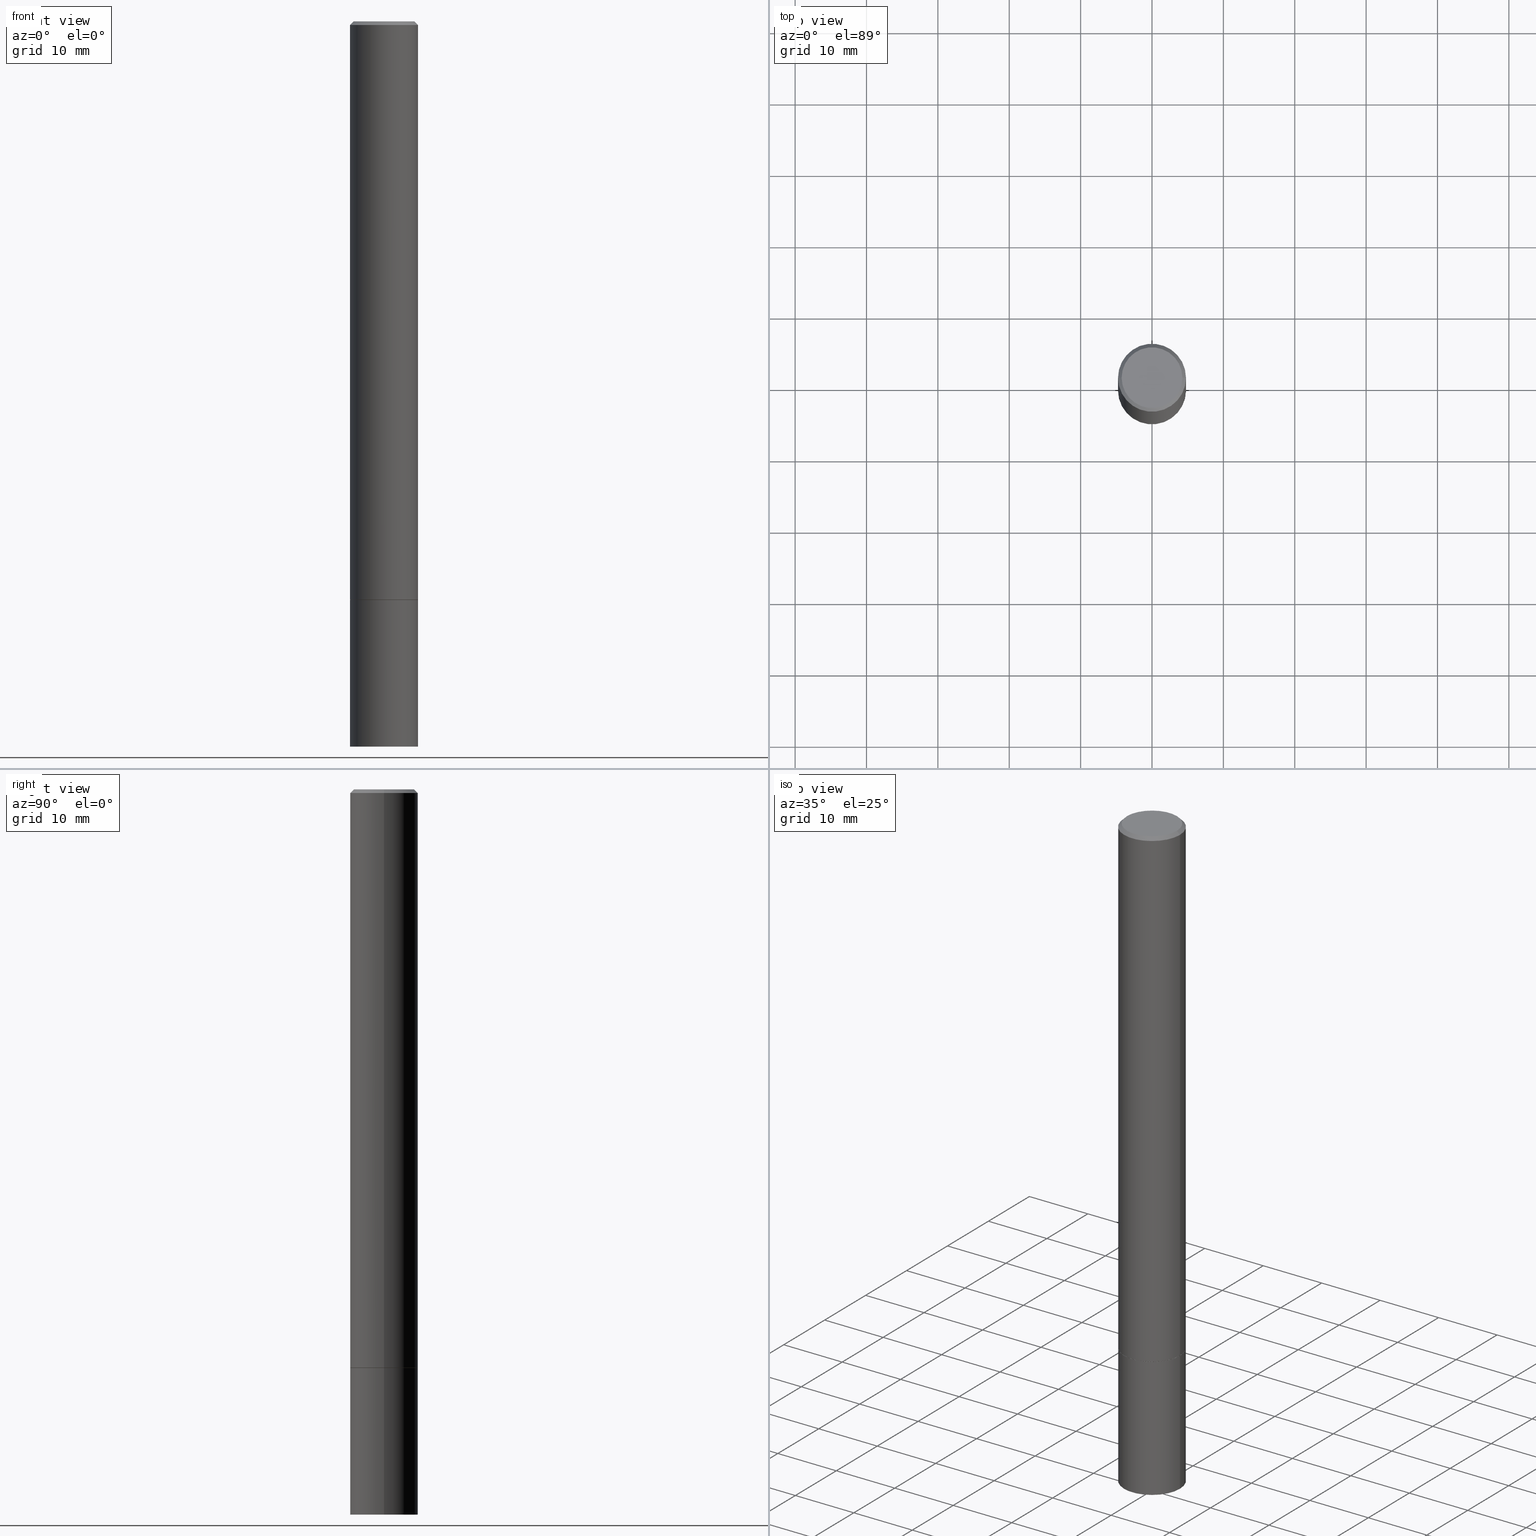
[diagram: canonical four-view strip — front | top / right | iso, engineering-drawing reading convention]
A machine part, canonical four-view strip (front | top / right | iso — engineering-drawing reading convention). The complete STEP part file that produces these views, byte-faithful:
ISO-10303-21;
HEADER;
FILE_DESCRIPTION (( 'STEP AP203' ),
    '1' );
FILE_NAME ('36142.STEP',
    '2024-02-27T19:13:35',
    ( '' ),
    ( '' ),
    'SwSTEP 2.0',
    'SolidWorks 2023',
    '' );
FILE_SCHEMA (( 'CONFIG_CONTROL_DESIGN' ));
ENDSEC;

DATA;
#1 = ORIENTED_EDGE ( 'NONE', *, *, #68, .T. ) ;
#2 = DIRECTION ( 'NONE',  ( -2.445468806185136597E-29, 3.491481338843145583E-15, 1.000000000000000000 ) ) ;
#3 = ADVANCED_FACE ( 'NONE', ( #161 ), #196, .T. ) ;
#4 = VERTEX_POINT ( 'NONE', #55 ) ;
#5 = COORDINATED_UNIVERSAL_TIME_OFFSET ( 5, 0, .BEHIND. ) ;
#6 = APPROVAL ( #12, 'UNSPECIFIED' ) ;
#7 = CARTESIAN_POINT ( 'NONE',  ( 7.801045491730584668E-29, -1.113782547090963453E-14, -3.189999999999999503 ) ) ;
#8 = EDGE_CURVE ( 'NONE', #230, #284, #127, .T. ) ;
#9 = APPROVAL_STATUS ( 'not_yet_approved' ) ;
#10 = DIRECTION ( 'NONE',  ( -2.445468806185136597E-29, 3.491481338843145583E-15, 1.000000000000000000 ) ) ;
#11 = ORIENTED_EDGE ( 'NONE', *, *, #357, .F. ) ;
#12 = APPROVAL_STATUS ( 'not_yet_approved' ) ;
#13 = APPLICATION_CONTEXT ( 'configuration controlled 3d designs of mechanical parts and assemblies' ) ;
#14 = CARTESIAN_POINT ( 'NONE',  ( 7.801045491730584668E-29, -1.113782547090963453E-14, -3.189999999999999503 ) ) ;
#15 = CIRCLE ( 'NONE', #332, 0.1874999999999996669 ) ;
#16 = DIRECTION ( 'NONE',  ( -1.000000000000000000, 6.982962677686267499E-15, 0.000000000000000000 ) ) ;
#17 = FACE_OUTER_BOUND ( 'NONE', #128, .T. ) ;
#18 = CC_DESIGN_DATE_AND_TIME_ASSIGNMENT ( #65, #259, ( #215 ) ) ;
#19 = CARTESIAN_POINT ( 'NONE',  ( 0.000000000000000000, 0.000000000000000000, 0.000000000000000000 ) ) ;
#20 = AXIS2_PLACEMENT_3D ( 'NONE', #300, #88, #47 ) ;
#21 = PRODUCT_DEFINITION_FORMATION_WITH_SPECIFIED_SOURCE ( 'ANY', '', #277, .NOT_KNOWN. ) ;
#22 = ADVANCED_FACE ( 'NONE', ( #82 ), #193, .F. ) ;
#23 = ORIENTED_EDGE ( 'NONE', *, *, #164, .T. ) ;
#24 = AXIS2_PLACEMENT_3D ( 'NONE', #114, #89, #206 ) ;
#25 = CARTESIAN_POINT ( 'NONE',  ( 7.798600022924400186E-29, -1.113433398957079152E-14, -3.188999999999999613 ) ) ;
#26 = ADVANCED_FACE ( 'NONE', ( #154 ), #274, .F. ) ;
#27 = CARTESIAN_POINT ( 'NONE',  ( 0.1875000000000000278, -1.244713097297580796E-14, -3.189999999999999503 ) ) ;
#28 = DIRECTION ( 'NONE',  ( 0.7071067811866320607, -2.468850131083142557E-15, 0.7071067811864629737 ) ) ;
#29 = AXIS2_PLACEMENT_3D ( 'NONE', #25, #122, #273 ) ;
#30 = ORIENTED_EDGE ( 'NONE', *, *, #224, .T. ) ;
#31 = VERTEX_POINT ( 'NONE', #278 ) ;
#32 = ORIENTED_EDGE ( 'NONE', *, *, #264, .F. ) ;
#33 = APPROVAL_DATE_TIME ( #58, #267 ) ;
#34 = CARTESIAN_POINT ( 'NONE',  ( 0.000000000000000000, 0.000000000000000000, 0.000000000000000000 ) ) ;
#35 = DIRECTION ( 'NONE',  ( -2.445468806185136877E-29, 3.491481338843145188E-15, 1.000000000000000000 ) ) ;
#36 = AXIS2_PLACEMENT_3D ( 'NONE', #123, #302, #305 ) ;
#37 = SECURITY_CLASSIFICATION_LEVEL ( 'unclassified' ) ;
#38 = ORIENTED_EDGE ( 'NONE', *, *, #287, .T. ) ;
#39 = COORDINATED_UNIVERSAL_TIME_OFFSET ( 5, 0, .BEHIND. ) ;
#40 = CARTESIAN_POINT ( 'NONE',  ( 0.1875000000000000278, -1.527523085743875734E-14, -4.000000000000000000 ) ) ;
#41 = CARTESIAN_POINT ( 'NONE',  ( 0.000000000000000000, 0.000000000000000000, 0.000000000000000000 ) ) ;
#42 = CLOSED_SHELL ( 'NONE', ( #117, #317, #106, #293, #229, #74, #26, #359 ) ) ;
#43 = DIRECTION ( 'NONE',  ( 1.000000000000000000, -6.982962677686269077E-15, 0.000000000000000000 ) ) ;
#44 = DIRECTION ( 'NONE',  ( -2.445468806185136597E-29, 3.491481338843145583E-15, 1.000000000000000000 ) ) ;
#45 = VECTOR ( 'NONE', #324, 39.37007874015748143 ) ;
#46 = VERTEX_POINT ( 'NONE', #86 ) ;
#47 = DIRECTION ( 'NONE',  ( 1.000000000000000000, -6.982962677686266711E-15, 4.876176775795935793E-29 ) ) ;
#48 = ORIENTED_EDGE ( 'NONE', *, *, #164, .F. ) ;
#49 = EDGE_CURVE ( 'NONE', #83, #46, #361, .T. ) ;
#50 = VECTOR ( 'NONE', #66, 39.37007874015748143 ) ;
#51 = LOCAL_TIME ( 14, 13, 35.00000000000000000, #5 ) ;
#52 = LINE ( 'NONE', #103, #173 ) ;
#53 = CARTESIAN_POINT ( 'NONE',  ( 1.169646248512447426E-15, 0.1674999999999996769, -5.848231242562257836E-16 ) ) ;
#54 = EDGE_CURVE ( 'NONE', #230, #249, #115, .T. ) ;
#55 = CARTESIAN_POINT ( 'NONE',  ( -0.1875000000000000278, -1.121960778359091979E-14, -3.189999999999999503 ) ) ;
#56 = DIRECTION ( 'NONE',  ( 1.000000000000000000, -6.982962677686265922E-15, 4.876176775795935793E-29 ) ) ;
#57 = ORIENTED_EDGE ( 'NONE', *, *, #357, .T. ) ;
#58 = DATE_AND_TIME ( #135, #342 ) ;
#59 = ORIENTED_EDGE ( 'NONE', *, *, #185, .F. ) ;
#60 = CALENDAR_DATE ( 2024, 27, 2 ) ;
#61 = EDGE_LOOP ( 'NONE', ( #328, #38, #162, #337 ) ) ;
#62 = CALENDAR_DATE ( 2024, 27, 2 ) ;
#63 = VECTOR ( 'NONE', #35, 39.37007874015748143 ) ;
#64 = ORIENTED_EDGE ( 'NONE', *, *, #175, .T. ) ;
#65 = DATE_AND_TIME ( #60, #253 ) ;
#66 = DIRECTION ( 'NONE',  ( -0.7071067811865466846, 2.468850131082247989E-15, -0.7071067811865483499 ) ) ;
#67 = CARTESIAN_POINT ( 'NONE',  ( 4.890937612370283668E-31, -6.982962677686305168E-17, -0.02000000000000004205 ) ) ;
#68 = EDGE_CURVE ( 'NONE', #184, #31, #211, .T. ) ;
#69 = LINE ( 'NONE', #112, #290 ) ;
#70 = AXIS2_PLACEMENT_3D ( 'NONE', #191, #77, #362 ) ;
#71 = LOCAL_TIME ( 14, 13, 35.00000000000000000, #280 ) ;
#72 = LINE ( 'NONE', #209, #50 ) ;
#73 = DIRECTION ( 'NONE',  ( 1.000000000000000000, -6.982962677686261189E-15, 0.000000000000000000 ) ) ;
#74 = ADVANCED_FACE ( 'NONE', ( #17 ), #310, .T. ) ;
#75 = FACE_OUTER_BOUND ( 'NONE', #217, .T. ) ;
#76 = CC_DESIGN_PERSON_AND_ORGANIZATION_ASSIGNMENT ( #105, #198, ( #21 ) ) ;
#77 = DIRECTION ( 'NONE',  ( 2.445468806185136597E-29, -3.491481338843145583E-15, -1.000000000000000000 ) ) ;
#78 = DIRECTION ( 'NONE',  ( -1.000000000000000000, 6.982962677686265922E-15, -4.876176775795935793E-29 ) ) ;
#79 = CARTESIAN_POINT ( 'NONE',  ( 0.1875000000000000278, -1.309305502066175008E-15, 9.142831454617381013E-30 ) ) ;
#80 = PLANE ( 'NONE',  #212 ) ;
#81 = VECTOR ( 'NONE', #28, 39.37007874015748143 ) ;
#82 = FACE_OUTER_BOUND ( 'NONE', #199, .T. ) ;
#83 = VERTEX_POINT ( 'NONE', #321 ) ;
#84 = EDGE_CURVE ( 'NONE', #31, #275, #69, .T. ) ;
#85 = DIRECTION ( 'NONE',  ( 0.000000000000000000, 0.000000000000000000, 1.000000000000000000 ) ) ;
#86 = CARTESIAN_POINT ( 'NONE',  ( 0.1864999999999999714, -1.244014801029812352E-14, -3.189999999999999503 ) ) ;
#87 = AXIS2_PLACEMENT_3D ( 'NONE', #318, #327, #73 ) ;
#88 = DIRECTION ( 'NONE',  ( -2.445468806185136597E-29, 3.491481338843145583E-15, 1.000000000000000000 ) ) ;
#89 = DIRECTION ( 'NONE',  ( -2.445468806185136597E-29, 3.491481338843145583E-15, 1.000000000000000000 ) ) ;
#90 = LINE ( 'NONE', #210, #45 ) ;
#91 = EDGE_LOOP ( 'NONE', ( #130, #121, #64, #167 ) ) ;
#92 = DIRECTION ( 'NONE',  ( 1.000000000000000000, -6.982962677686266711E-15, 4.876176775795936353E-29 ) ) ;
#93 = APPROVAL_PERSON_ORGANIZATION ( #170, #267, #232 ) ;
#94 = ORIENTED_EDGE ( 'NONE', *, *, #151, .T. ) ;
#95 = LINE ( 'NONE', #272, #296 ) ;
#96 = DIRECTION ( 'NONE',  ( -0.7071067811866320607, 7.493145998870660238E-15, 0.7071067811864629737 ) ) ;
#97 = ORIENTED_EDGE ( 'NONE', *, *, #264, .T. ) ;
#98 = DIRECTION ( 'NONE',  ( 1.000000000000000000, -6.982962677686261189E-15, 0.000000000000000000 ) ) ;
#99 = AXIS2_PLACEMENT_3D ( 'NONE', #67, #286, #16 ) ;
#100 = PRODUCT_RELATED_PRODUCT_CATEGORY ( 'detail', '', ( #277 ) ) ;
#101 = CARTESIAN_POINT ( 'NONE',  ( 0.1864999999999999714, -1.244014801029812352E-14, -3.189999999999999503 ) ) ;
#102 = ORIENTED_EDGE ( 'NONE', *, *, #242, .T. ) ;
#103 = CARTESIAN_POINT ( 'NONE',  ( -0.1875000000000000278, 1.332267629550188046E-15, -9.223003294227947991E-30 ) ) ;
#104 = EDGE_LOOP ( 'NONE', ( #200, #333, #57, #234 ) ) ;
#105 = PERSON_AND_ORGANIZATION ( #190, #166 ) ;
#106 = ADVANCED_FACE ( 'NONE', ( #182 ), #266, .T. ) ;
#107 = CIRCLE ( 'NONE', #36, 0.1874999999999996669 ) ;
#108 = PERSON_AND_ORGANIZATION ( #190, #166 ) ;
#109 = DIRECTION ( 'NONE',  ( -2.445468806185136597E-29, 3.491481338843145583E-15, 1.000000000000000000 ) ) ;
#110 = PLANE ( 'NONE',  #133 ) ;
#111 = CC_DESIGN_PERSON_AND_ORGANIZATION_ASSIGNMENT ( #204, #315, ( #215 ) ) ;
#112 = CARTESIAN_POINT ( 'NONE',  ( 0.1874999999999996669, -1.356173001359023100E-15, -0.02000000000000004205 ) ) ;
#113 = CARTESIAN_POINT ( 'NONE',  ( 1.309305502066272827E-15, 0.1874999999999860389, -4.000000000000000888 ) ) ;
#114 = CARTESIAN_POINT ( 'NONE',  ( 7.801045491730584668E-29, -1.113782547090963453E-14, -3.189999999999999503 ) ) ;
#115 = CIRCLE ( 'NONE', #195, 0.1875000000000000278 ) ;
#116 = ORIENTED_EDGE ( 'NONE', *, *, #54, .F. ) ;
#117 = ADVANCED_FACE ( 'NONE', ( #292 ), #205, .T. ) ;
#118 = AXIS2_PLACEMENT_3D ( 'NONE', #152, #183, #271 ) ;
#119 =( CONVERSION_BASED_UNIT ( 'INCH', #223 ) LENGTH_UNIT ( ) NAMED_UNIT ( #297 ) );
#120 = CC_DESIGN_APPROVAL ( #6, ( #215 ) ) ;
#121 = ORIENTED_EDGE ( 'NONE', *, *, #68, .F. ) ;
#122 = DIRECTION ( 'NONE',  ( -2.445468806185136597E-29, 3.491481338843145583E-15, 1.000000000000000000 ) ) ;
#123 = CARTESIAN_POINT ( 'NONE',  ( 4.890937612370283668E-31, -6.982962677686305168E-17, -0.02000000000000004205 ) ) ;
#124 = AXIS2_PLACEMENT_3D ( 'NONE', #14, #208, #257 ) ;
#125 = ORIENTED_EDGE ( 'NONE', *, *, #254, .T. ) ;
#126 = FACE_OUTER_BOUND ( 'NONE', #177, .T. ) ;
#127 = LINE ( 'NONE', #79, #63 ) ;
#128 = EDGE_LOOP ( 'NONE', ( #338, #136, #203, #330 ) ) ;
#129 = APPROVAL_STATUS ( 'not_yet_approved' ) ;
#130 = ORIENTED_EDGE ( 'NONE', *, *, #84, .F. ) ;
#131 = COORDINATED_UNIVERSAL_TIME_OFFSET ( 5, 0, .BEHIND. ) ;
#132 = CC_DESIGN_PERSON_AND_ORGANIZATION_ASSIGNMENT ( #343, #207, ( #277 ) ) ;
#133 = AXIS2_PLACEMENT_3D ( 'NONE', #113, #176, #238 ) ;
#134 = CARTESIAN_POINT ( 'NONE',  ( 1.309305502066253105E-15, 0.1874999999999888700, -3.189999999999999947 ) ) ;
#135 = CALENDAR_DATE ( 2024, 27, 2 ) ;
#136 = ORIENTED_EDGE ( 'NONE', *, *, #49, .T. ) ;
#137 = DIRECTION ( 'NONE',  ( 1.000000000000000000, 0.000000000000000000, 0.000000000000000000 ) ) ;
#138 = DIRECTION ( 'NONE',  ( 1.000000000000000000, -6.982962677686261189E-15, 0.000000000000000000 ) ) ;
#139 = APPROVAL ( #129, 'UNSPECIFIED' ) ;
#140 = APPROVAL_DATE_TIME ( #251, #139 ) ;
#141 = CARTESIAN_POINT ( 'NONE',  ( -0.1674999999999996769, 1.204561061900878483E-15, -8.301862719484096375E-30 ) ) ;
#142 = CIRCLE ( 'NONE', #214, 0.1875000000000000278 ) ;
#143 = CARTESIAN_POINT ( 'NONE',  ( 9.781875224740546387E-29, -1.396592535537258233E-14, -4.000000000000000000 ) ) ;
#144 = EDGE_CURVE ( 'NONE', #31, #184, #261, .T. ) ;
#145 = DIRECTION ( 'NONE',  ( 1.000000000000000000, -6.982962677686269077E-15, 0.000000000000000000 ) ) ;
#146 = ADVANCED_BREP_SHAPE_REPRESENTATION ( '36142', ( #301, #181, #228 ), #179 ) ;
#147 = AXIS2_PLACEMENT_3D ( 'NONE', #41, #10, #92 ) ;
#148 = ORIENTED_EDGE ( 'NONE', *, *, #144, .F. ) ;
#149 = CIRCLE ( 'NONE', #87, 0.1875000000000000278 ) ;
#150 = LINE ( 'NONE', #304, #341 ) ;
#151 = EDGE_CURVE ( 'NONE', #46, #83, #303, .T. ) ;
#152 = CARTESIAN_POINT ( 'NONE',  ( 9.781875224740546387E-29, -1.396592535537258233E-14, -4.000000000000000000 ) ) ;
#153 = CC_DESIGN_DATE_AND_TIME_ASSIGNMENT ( #349, #201, ( #197 ) ) ;
#154 = FACE_OUTER_BOUND ( 'NONE', #307, .T. ) ;
#155 = VERTEX_POINT ( 'NONE', #216 ) ;
#156 =( NAMED_UNIT ( * ) PLANE_ANGLE_UNIT ( ) SI_UNIT ( $, .RADIAN. ) );
#157 = AXIS2_PLACEMENT_3D ( 'NONE', #172, #109, #43 ) ;
#158 = APPROVAL_ROLE ( '' ) ;
#159 = EDGE_LOOP ( 'NONE', ( #148, #314, #188, #213 ) ) ;
#160 = PERSON_AND_ORGANIZATION ( #190, #166 ) ;
#161 = FACE_OUTER_BOUND ( 'NONE', #258, .T. ) ;
#162 = ORIENTED_EDGE ( 'NONE', *, *, #242, .F. ) ;
#163 = DATE_AND_TIME ( #62, #71 ) ;
#164 = EDGE_CURVE ( 'NONE', #4, #284, #149, .T. ) ;
#165 = AXIS2_PLACEMENT_3D ( 'NONE', #231, #282, #344 ) ;
#166 = ORGANIZATION ( 'UNSPECIFIED', 'UNSPECIFIED', '' ) ;
#167 = ORIENTED_EDGE ( 'NONE', *, *, #348, .T. ) ;
#168 = SHAPE_DEFINITION_REPRESENTATION ( #288, #146 ) ;
#169 = CARTESIAN_POINT ( 'NONE',  ( -0.1875000000000000278, -4.269814178623634829E-15, -3.188999999999999613 ) ) ;
#170 = PERSON_AND_ORGANIZATION ( #190, #166 ) ;
#171 = DIRECTION ( 'NONE',  ( -2.445468806185136597E-29, 3.491481338843145583E-15, 1.000000000000000000 ) ) ;
#172 = CARTESIAN_POINT ( 'NONE',  ( 7.801045491730584668E-29, -1.113782547090963453E-14, -3.189999999999999503 ) ) ;
#173 = VECTOR ( 'NONE', #221, 39.37007874015748143 ) ;
#174 = CC_DESIGN_SECURITY_CLASSIFICATION ( #215, ( #21 ) ) ;
#175 = EDGE_CURVE ( 'NONE', #184, #309, #72, .T. ) ;
#176 = DIRECTION ( 'NONE',  ( 2.438088387897960049E-29, -3.491481338843145188E-15, -1.000000000000000000 ) ) ;
#177 = EDGE_LOOP ( 'NONE', ( #125, #30, #59, #11 ) ) ;
#178 = CIRCLE ( 'NONE', #29, 0.1875000000000000278 ) ;
#179 =( GEOMETRIC_REPRESENTATION_CONTEXT ( 3 ) GLOBAL_UNCERTAINTY_ASSIGNED_CONTEXT ( ( #202 ) ) GLOBAL_UNIT_ASSIGNED_CONTEXT ( ( #119, #156, #187 ) ) REPRESENTATION_CONTEXT ( 'NONE', 'WORKASPACE' ) );
#180 = CC_DESIGN_PERSON_AND_ORGANIZATION_ASSIGNMENT ( #354, #250, ( #197 ) ) ;
#181 = MANIFOLD_SOLID_BREP ( 'Body-Move/Copy2[2]', #42 ) ;
#182 = FACE_OUTER_BOUND ( 'NONE', #159, .T. ) ;
#183 = DIRECTION ( 'NONE',  ( -2.445468806185136597E-29, 3.491481338843145583E-15, 1.000000000000000000 ) ) ;
#184 = VERTEX_POINT ( 'NONE', #141 ) ;
#185 = EDGE_CURVE ( 'NONE', #275, #309, #15, .T. ) ;
#186 = AXIS2_PLACEMENT_3D ( 'NONE', #336, #2, #331 ) ;
#187 =( NAMED_UNIT ( * ) SI_UNIT ( $, .STERADIAN. ) SOLID_ANGLE_UNIT ( ) );
#188 = ORIENTED_EDGE ( 'NONE', *, *, #185, .T. ) ;
#189 = CARTESIAN_POINT ( 'NONE',  ( -0.1874999999999996669, 1.239475875289309738E-15, -0.02000000000000004205 ) ) ;
#190 = PERSON ( 'UNSPECIFIED', 'UNSPECIFIED', 'UNSPECIFIED', ('UNSPECIFIED'), ('UNSPECIFIED'), ('UNSPECIFIED') ) ;
#191 = CARTESIAN_POINT ( 'NONE',  ( 4.890937612370283668E-31, -6.982962677686305168E-17, -0.02000000000000004205 ) ) ;
#192 = ADVANCED_FACE ( 'NONE', ( #262 ), #110, .T. ) ;
#193 = PLANE ( 'NONE',  #366 ) ;
#194 = ORIENTED_EDGE ( 'NONE', *, *, #8, .T. ) ;
#195 = AXIS2_PLACEMENT_3D ( 'NONE', #143, #265, #235 ) ;
#196 = CYLINDRICAL_SURFACE ( 'NONE', #165, 0.1875000000000000278 ) ;
#197 = PRODUCT_DEFINITION ( 'UNKNOWN', '', #21, #364 ) ;
#198 = PERSON_AND_ORGANIZATION_ROLE ( 'creator' ) ;
#199 = EDGE_LOOP ( 'NONE', ( #102, #23 ) ) ;
#200 = ORIENTED_EDGE ( 'NONE', *, *, #224, .F. ) ;
#201 = DATE_TIME_ROLE ( 'creation_date' ) ;
#202 = UNCERTAINTY_MEASURE_WITH_UNIT (LENGTH_MEASURE( 1.000000000000000082E-05 ), #119, 'distance_accuracy_value', 'NONE');
#203 = ORIENTED_EDGE ( 'NONE', *, *, #299, .T. ) ;
#204 = PERSON_AND_ORGANIZATION ( #190, #166 ) ;
#205 = CONICAL_SURFACE ( 'NONE', #124, 0.1864999999999999714, 0.7853981633975678500 ) ;
#206 = DIRECTION ( 'NONE',  ( 1.000000000000000000, -6.982962677686269077E-15, 0.000000000000000000 ) ) ;
#207 = PERSON_AND_ORGANIZATION_ROLE ( 'design_owner' ) ;
#208 = DIRECTION ( 'NONE',  ( -2.445468806185136597E-29, 3.491481338843145583E-15, 1.000000000000000000 ) ) ;
#209 = CARTESIAN_POINT ( 'NONE',  ( -0.1874999999999996669, 1.239475875289309738E-15, -0.02000000000000004205 ) ) ;
#210 = CARTESIAN_POINT ( 'NONE',  ( -0.1874999999999998335, 1.332267629550186665E-15, -9.223003294227939583E-30 ) ) ;
#211 = CIRCLE ( 'NONE', #246, 0.1674999999999996769 ) ;
#212 = AXIS2_PLACEMENT_3D ( 'NONE', #53, #247, #78 ) ;
#213 = ORIENTED_EDGE ( 'NONE', *, *, #175, .F. ) ;
#214 = AXIS2_PLACEMENT_3D ( 'NONE', #233, #350, #138 ) ;
#215 = SECURITY_CLASSIFICATION ( '', '', #37 ) ;
#216 = CARTESIAN_POINT ( 'NONE',  ( 0.1875000000000000278, -1.244363949163696495E-14, -3.188999999999999613 ) ) ;
#217 = EDGE_LOOP ( 'NONE', ( #1, #306 ) ) ;
#218 = DIRECTION ( 'NONE',  ( -2.445468806185136877E-29, 3.491481338843145188E-15, 1.000000000000000000 ) ) ;
#219 = CARTESIAN_POINT ( 'NONE',  ( 0.1874999999999996669, -1.356173001359023100E-15, -0.02000000000000004205 ) ) ;
#220 = VERTEX_POINT ( 'NONE', #169 ) ;
#221 = DIRECTION ( 'NONE',  ( -2.445468806185136877E-29, 3.491481338843145188E-15, 1.000000000000000000 ) ) ;
#222 = ORIENTED_EDGE ( 'NONE', *, *, #299, .F. ) ;
#223 = LENGTH_MEASURE_WITH_UNIT ( LENGTH_MEASURE( 0.02539999999999999897 ), #329 );
#224 = EDGE_CURVE ( 'NONE', #220, #309, #90, .T. ) ;
#225 = ORIENTED_EDGE ( 'NONE', *, *, #49, .F. ) ;
#226 = APPLICATION_PROTOCOL_DEFINITION ( 'international standard', 'config_control_design', 1994, #13 ) ;
#227 = CONICAL_SURFACE ( 'NONE', #70, 0.1874999999999996669, 0.7853981633974471688 ) ;
#228 = AXIS2_PLACEMENT_3D ( 'NONE', #34, #85, #137 ) ;
#229 = ADVANCED_FACE ( 'NONE', ( #260 ), #294, .T. ) ;
#230 = VERTEX_POINT ( 'NONE', #40 ) ;
#231 = CARTESIAN_POINT ( 'NONE',  ( 0.000000000000000000, 0.000000000000000000, 0.000000000000000000 ) ) ;
#232 = APPROVAL_ROLE ( '' ) ;
#233 = CARTESIAN_POINT ( 'NONE',  ( 7.801045491730584668E-29, -1.113782547090963453E-14, -3.189999999999999503 ) ) ;
#234 = ORIENTED_EDGE ( 'NONE', *, *, #348, .F. ) ;
#235 = DIRECTION ( 'NONE',  ( 1.000000000000000000, -6.982962677686261189E-15, 0.000000000000000000 ) ) ;
#236 = APPROVAL_ROLE ( '' ) ;
#237 = DIRECTION ( 'NONE',  ( -2.445468806185136597E-29, 3.491481338843145583E-15, 1.000000000000000000 ) ) ;
#238 = DIRECTION ( 'NONE',  ( -1.000000000000000000, 6.982962677686265922E-15, -4.876176775795935793E-29 ) ) ;
#239 = CC_DESIGN_PERSON_AND_ORGANIZATION_ASSIGNMENT ( #312, #346, ( #21 ) ) ;
#240 = ORIENTED_EDGE ( 'NONE', *, *, #254, .F. ) ;
#241 = CIRCLE ( 'NONE', #118, 0.1875000000000000278 ) ;
#242 = EDGE_CURVE ( 'NONE', #284, #4, #142, .T. ) ;
#243 = LINE ( 'NONE', #101, #81 ) ;
#244 = DIRECTION ( 'NONE',  ( -2.445468806185136597E-29, 3.491481338843145583E-15, 1.000000000000000000 ) ) ;
#245 = ADVANCED_FACE ( 'NONE', ( #320 ), #289, .T. ) ;
#246 = AXIS2_PLACEMENT_3D ( 'NONE', #19, #237, #263 ) ;
#247 = DIRECTION ( 'NONE',  ( 2.438088387897960049E-29, -3.491481338843145188E-15, -1.000000000000000000 ) ) ;
#248 = CARTESIAN_POINT ( 'NONE',  ( 0.000000000000000000, 0.000000000000000000, 0.000000000000000000 ) ) ;
#249 = VERTEX_POINT ( 'NONE', #335 ) ;
#250 = PERSON_AND_ORGANIZATION_ROLE ( 'creator' ) ;
#251 = DATE_AND_TIME ( #352, #326 ) ;
#252 = AXIS2_PLACEMENT_3D ( 'NONE', #365, #308, #98 ) ;
#253 = LOCAL_TIME ( 14, 13, 35.00000000000000000, #316 ) ;
#254 = EDGE_CURVE ( 'NONE', #155, #220, #322, .T. ) ;
#255 = DIRECTION ( 'NONE',  ( -1.000000000000000000, 6.982962677686265922E-15, -4.876176775795935793E-29 ) ) ;
#256 = APPLICATION_PROTOCOL_DEFINITION ( 'international standard', 'config_control_design', 1994, #358 ) ;
#257 = DIRECTION ( 'NONE',  ( 1.000000000000000000, -6.982962677686269077E-15, 0.000000000000000000 ) ) ;
#258 = EDGE_LOOP ( 'NONE', ( #340, #97, #194, #48 ) ) ;
#259 = DATE_TIME_ROLE ( 'classification_date' ) ;
#260 = FACE_OUTER_BOUND ( 'NONE', #104, .T. ) ;
#261 = CIRCLE ( 'NONE', #147, 0.1674999999999996769 ) ;
#262 = FACE_OUTER_BOUND ( 'NONE', #351, .T. ) ;
#263 = DIRECTION ( 'NONE',  ( 1.000000000000000000, -6.982962677686266711E-15, 4.876176775795936353E-29 ) ) ;
#264 = EDGE_CURVE ( 'NONE', #249, #230, #241, .T. ) ;
#265 = DIRECTION ( 'NONE',  ( -2.445468806185136597E-29, 3.491481338843145583E-15, 1.000000000000000000 ) ) ;
#266 = CONICAL_SURFACE ( 'NONE', #99, 0.1874999999999996669, 0.7853981633974471688 ) ;
#267 = APPROVAL ( #9, 'UNSPECIFIED' ) ;
#268 = EDGE_CURVE ( 'NONE', #220, #155, #178, .T. ) ;
#269 = FACE_OUTER_BOUND ( 'NONE', #91, .T. ) ;
#270 = APPROVAL_PERSON_ORGANIZATION ( #108, #139, #158 ) ;
#271 = DIRECTION ( 'NONE',  ( 1.000000000000000000, -6.982962677686261189E-15, 0.000000000000000000 ) ) ;
#272 = CARTESIAN_POINT ( 'NONE',  ( 0.1874999999999998335, -1.309305502066173825E-15, 9.142831454617371204E-30 ) ) ;
#273 = DIRECTION ( 'NONE',  ( 1.000000000000000000, -6.982962677686261189E-15, 0.000000000000000000 ) ) ;
#274 = PLANE ( 'NONE',  #283 ) ;
#275 = VERTEX_POINT ( 'NONE', #219 ) ;
#276 = CLOSED_SHELL ( 'NONE', ( #245, #192, #22, #3 ) ) ;
#277 = PRODUCT ( '36142', '36142', '', ( #279 ) ) ;
#278 = CARTESIAN_POINT ( 'NONE',  ( 0.1674999999999996769, -1.252653207992876119E-15, 8.469775550109225372E-30 ) ) ;
#279 = MECHANICAL_CONTEXT ( 'NONE', #358, 'mechanical' ) ;
#280 = COORDINATED_UNIVERSAL_TIME_OFFSET ( 5, 0, .BEHIND. ) ;
#281 = EDGE_CURVE ( 'NONE', #83, #220, #150, .T. ) ;
#282 = DIRECTION ( 'NONE',  ( -2.445468806185136597E-29, 3.491481338843145583E-15, 1.000000000000000000 ) ) ;
#283 = AXIS2_PLACEMENT_3D ( 'NONE', #7, #347, #56 ) ;
#284 = VERTEX_POINT ( 'NONE', #27 ) ;
#285 = CALENDAR_DATE ( 2024, 27, 2 ) ;
#286 = DIRECTION ( 'NONE',  ( 2.445468806185136597E-29, -3.491481338843145583E-15, -1.000000000000000000 ) ) ;
#287 = EDGE_CURVE ( 'NONE', #249, #4, #52, .T. ) ;
#288 = PRODUCT_DEFINITION_SHAPE ( 'NONE', 'NONE',  #197 ) ;
#289 = CYLINDRICAL_SURFACE ( 'NONE', #295, 0.1875000000000000278 ) ;
#290 = VECTOR ( 'NONE', #355, 39.37007874015748143 ) ;
#291 = APPROVAL_PERSON_ORGANIZATION ( #160, #6, #236 ) ;
#292 = FACE_OUTER_BOUND ( 'NONE', #345, .T. ) ;
#293 = ADVANCED_FACE ( 'NONE', ( #269 ), #227, .T. ) ;
#294 = CYLINDRICAL_SURFACE ( 'NONE', #20, 0.1874999999999998335 ) ;
#295 = AXIS2_PLACEMENT_3D ( 'NONE', #248, #244, #339 ) ;
#296 = VECTOR ( 'NONE', #218, 39.37007874015748143 ) ;
#297 = DIMENSIONAL_EXPONENTS ( 1.000000000000000000, 0.000000000000000000, 0.000000000000000000, 0.000000000000000000, 0.000000000000000000, 0.000000000000000000, 0.000000000000000000 ) ;
#298 = ORIENTED_EDGE ( 'NONE', *, *, #281, .T. ) ;
#299 = EDGE_CURVE ( 'NONE', #46, #155, #243, .T. ) ;
#300 = CARTESIAN_POINT ( 'NONE',  ( 0.000000000000000000, 0.000000000000000000, 0.000000000000000000 ) ) ;
#301 = MANIFOLD_SOLID_BREP ( 'Body-Move/Copy2[1]', #276 ) ;
#302 = DIRECTION ( 'NONE',  ( -2.445468806185136597E-29, 3.491481338843145583E-15, 1.000000000000000000 ) ) ;
#303 = CIRCLE ( 'NONE', #157, 0.1864999999999999714 ) ;
#304 = CARTESIAN_POINT ( 'NONE',  ( -0.1864999999999999714, -9.812663268717046902E-15, -3.189999999999999503 ) ) ;
#305 = DIRECTION ( 'NONE',  ( 1.000000000000000000, -6.982962677686267499E-15, 0.000000000000000000 ) ) ;
#306 = ORIENTED_EDGE ( 'NONE', *, *, #144, .T. ) ;
#307 = EDGE_LOOP ( 'NONE', ( #325, #225 ) ) ;
#308 = DIRECTION ( 'NONE',  ( -2.445468806185136597E-29, 3.491481338843145583E-15, 1.000000000000000000 ) ) ;
#309 = VERTEX_POINT ( 'NONE', #189 ) ;
#310 = CONICAL_SURFACE ( 'NONE', #24, 0.1864999999999999714, 0.7853981633975678500 ) ;
#311 = CC_DESIGN_APPROVAL ( #267, ( #21 ) ) ;
#312 = PERSON_AND_ORGANIZATION ( #190, #166 ) ;
#313 = DIRECTION ( 'NONE',  ( 2.438088387897960049E-29, -3.491481338843145188E-15, -1.000000000000000000 ) ) ;
#314 = ORIENTED_EDGE ( 'NONE', *, *, #84, .T. ) ;
#315 = PERSON_AND_ORGANIZATION_ROLE ( 'classification_officer' ) ;
#316 = COORDINATED_UNIVERSAL_TIME_OFFSET ( 5, 0, .BEHIND. ) ;
#317 = ADVANCED_FACE ( 'NONE', ( #126 ), #363, .T. ) ;
#318 = CARTESIAN_POINT ( 'NONE',  ( 7.801045491730584668E-29, -1.113782547090963453E-14, -3.189999999999999503 ) ) ;
#319 = APPROVAL_DATE_TIME ( #163, #6 ) ;
#320 = FACE_OUTER_BOUND ( 'NONE', #61, .T. ) ;
#321 = CARTESIAN_POINT ( 'NONE',  ( -0.1864999999999999714, -9.807364814368824500E-15, -3.189999999999999503 ) ) ;
#322 = CIRCLE ( 'NONE', #252, 0.1875000000000000278 ) ;
#323 = CC_DESIGN_APPROVAL ( #139, ( #197 ) ) ;
#324 = DIRECTION ( 'NONE',  ( -2.445468806185136877E-29, 3.491481338843145188E-15, 1.000000000000000000 ) ) ;
#325 = ORIENTED_EDGE ( 'NONE', *, *, #151, .F. ) ;
#326 = LOCAL_TIME ( 14, 13, 35.00000000000000000, #131 ) ;
#327 = DIRECTION ( 'NONE',  ( -2.445468806185136597E-29, 3.491481338843145583E-15, 1.000000000000000000 ) ) ;
#328 = ORIENTED_EDGE ( 'NONE', *, *, #54, .T. ) ;
#329 =( LENGTH_UNIT ( ) NAMED_UNIT ( * ) SI_UNIT ( $, .METRE. ) );
#330 = ORIENTED_EDGE ( 'NONE', *, *, #268, .F. ) ;
#331 = DIRECTION ( 'NONE',  ( 1.000000000000000000, -6.982962677686266711E-15, 4.876176775795935793E-29 ) ) ;
#332 = AXIS2_PLACEMENT_3D ( 'NONE', #356, #171, #353 ) ;
#333 = ORIENTED_EDGE ( 'NONE', *, *, #268, .T. ) ;
#334 = AXIS2_PLACEMENT_3D ( 'NONE', #360, #44, #145 ) ;
#335 = CARTESIAN_POINT ( 'NONE',  ( -0.1875000000000000278, -1.121960778359091979E-14, -4.000000000000000000 ) ) ;
#336 = CARTESIAN_POINT ( 'NONE',  ( 0.000000000000000000, 0.000000000000000000, 0.000000000000000000 ) ) ;
#337 = ORIENTED_EDGE ( 'NONE', *, *, #8, .F. ) ;
#338 = ORIENTED_EDGE ( 'NONE', *, *, #281, .F. ) ;
#339 = DIRECTION ( 'NONE',  ( 1.000000000000000000, -6.982962677686265922E-15, 4.876176775795935793E-29 ) ) ;
#340 = ORIENTED_EDGE ( 'NONE', *, *, #287, .F. ) ;
#341 = VECTOR ( 'NONE', #96, 39.37007874015748143 ) ;
#342 = LOCAL_TIME ( 14, 13, 35.00000000000000000, #39 ) ;
#343 = PERSON_AND_ORGANIZATION ( #190, #166 ) ;
#344 = DIRECTION ( 'NONE',  ( 1.000000000000000000, -6.982962677686265922E-15, 4.876176775795935793E-29 ) ) ;
#345 = EDGE_LOOP ( 'NONE', ( #94, #298, #240, #222 ) ) ;
#346 = PERSON_AND_ORGANIZATION_ROLE ( 'design_supplier' ) ;
#347 = DIRECTION ( 'NONE',  ( -2.438088387897960049E-29, 3.491481338843145188E-15, 1.000000000000000000 ) ) ;
#348 = EDGE_CURVE ( 'NONE', #309, #275, #107, .T. ) ;
#349 = DATE_AND_TIME ( #285, #51 ) ;
#350 = DIRECTION ( 'NONE',  ( -2.445468806185136597E-29, 3.491481338843145583E-15, 1.000000000000000000 ) ) ;
#351 = EDGE_LOOP ( 'NONE', ( #116, #32 ) ) ;
#352 = CALENDAR_DATE ( 2024, 27, 2 ) ;
#353 = DIRECTION ( 'NONE',  ( 1.000000000000000000, -6.982962677686267499E-15, 0.000000000000000000 ) ) ;
#354 = PERSON_AND_ORGANIZATION ( #190, #166 ) ;
#355 = DIRECTION ( 'NONE',  ( 0.7071067811865466846, -7.319954787623252890E-15, -0.7071067811865483499 ) ) ;
#356 = CARTESIAN_POINT ( 'NONE',  ( 4.890937612370283668E-31, -6.982962677686305168E-17, -0.02000000000000004205 ) ) ;
#357 = EDGE_CURVE ( 'NONE', #155, #275, #95, .T. ) ;
#358 = APPLICATION_CONTEXT ( 'configuration controlled 3d designs of mechanical parts and assemblies' ) ;
#359 = ADVANCED_FACE ( 'NONE', ( #75 ), #80, .F. ) ;
#360 = CARTESIAN_POINT ( 'NONE',  ( 7.801045491730584668E-29, -1.113782547090963453E-14, -3.189999999999999503 ) ) ;
#361 = CIRCLE ( 'NONE', #334, 0.1864999999999999714 ) ;
#362 = DIRECTION ( 'NONE',  ( -1.000000000000000000, 6.982962677686267499E-15, 0.000000000000000000 ) ) ;
#363 = CYLINDRICAL_SURFACE ( 'NONE', #186, 0.1874999999999998335 ) ;
#364 = DESIGN_CONTEXT ( 'detailed design', #13, 'design' ) ;
#365 = CARTESIAN_POINT ( 'NONE',  ( 7.798600022924400186E-29, -1.113433398957079152E-14, -3.188999999999999613 ) ) ;
#366 = AXIS2_PLACEMENT_3D ( 'NONE', #134, #313, #255 ) ;
ENDSEC;
END-ISO-10303-21;
